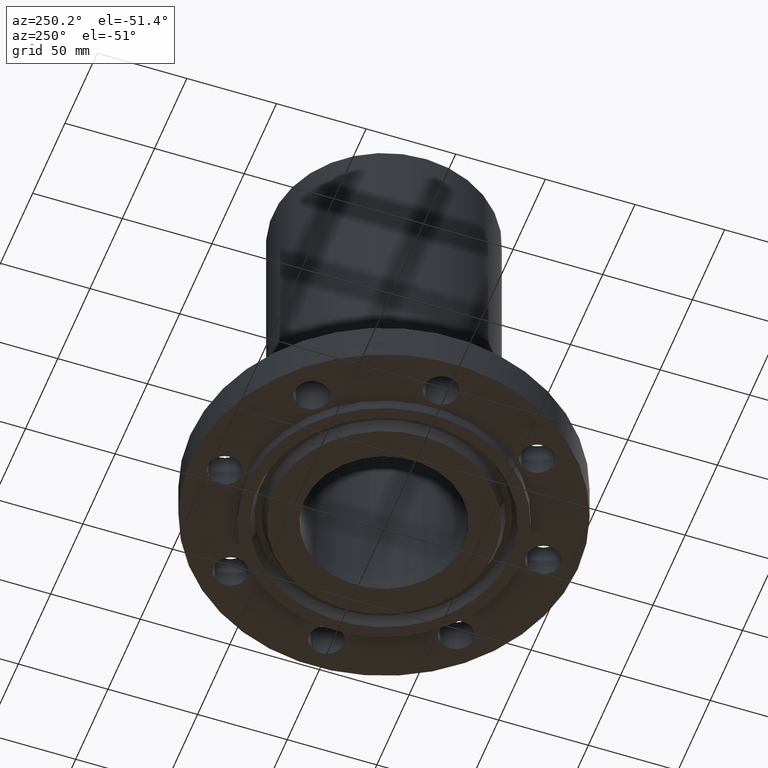
[diagram: clean part render]
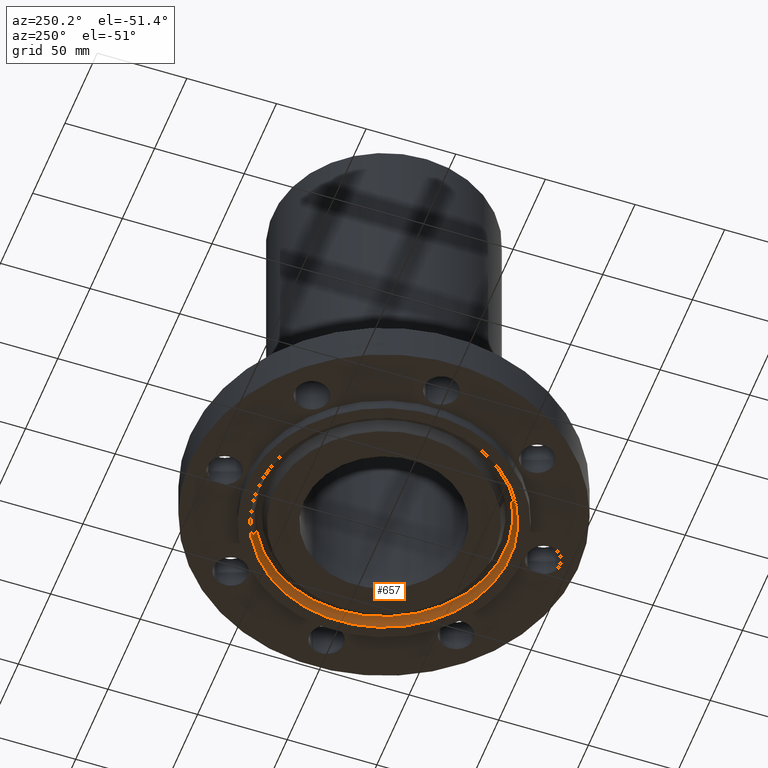
[diagram: same view with one face highlighted and labeled with its STEP entity id]
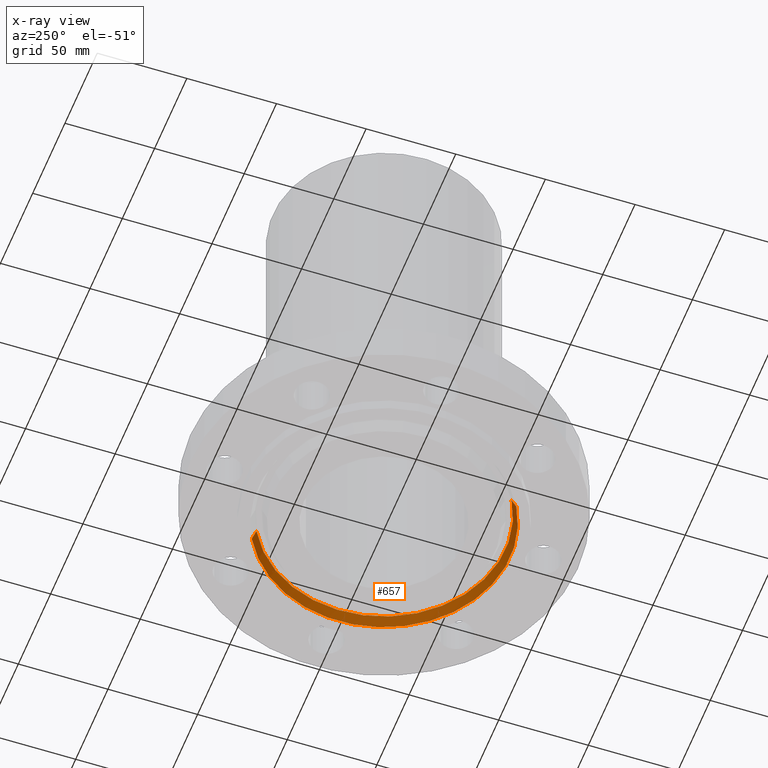
[diagram: x-ray of the same camera — body ghosted, the highlighted face saturated]
A machine part, auxiliary view. The second image highlights one B-rep face of the part: STEP entity #657.
The next image is the same camera in x-ray: the body ghosted, the highlighted face saturated — about 0% of this face is hidden behind the body in this view.
In plain terms, the highlighted conical surface has half-angle 23 deg.
Its self-contained STEP definition (entity closure, byte-faithful):
#605=AXIS2_PLACEMENT_3D('Circle Axis2P3D',#603,#604,$) ;
#618=AXIS2_PLACEMENT_3D('Cone Axis2P3D',#615,#616,#617) ;
#648=AXIS2_PLACEMENT_3D('Circle Axis2P3D',#646,#647,$) ;
#581=CARTESIAN_POINT('Vertex',(-1.27905867244,-2.34130119524,-0.0188873350169)) ;
#588=CARTESIAN_POINT('Vertex',(1.27905867244,2.34130119524,-0.0188873350169)) ;
#603=CARTESIAN_POINT('Axis2P3D Location',(0.,0.,-0.0188873350169)) ;
#615=CARTESIAN_POINT('Axis2P3D Location',(0.,0.,-0.0188873350169)) ;
#620=CARTESIAN_POINT('Line Origine',(-1.30257485611,-2.38434728072,-0.134443667509)) ;
#624=CARTESIAN_POINT('Vertex',(-1.32609103978,-2.4273933662,-0.250000000001)) ;
#631=CARTESIAN_POINT('Vertex',(1.32609103978,2.4273933662,-0.250000000001)) ;
#634=CARTESIAN_POINT('Line Origine',(1.30257485611,2.38434728072,-0.134443667509)) ;
#646=CARTESIAN_POINT('Axis2P3D Location',(0.,0.,-0.250000000001)) ;
#604=DIRECTION('Axis2P3D Direction',(0.,0.,-0.0393700787402)) ;
#616=DIRECTION('Axis2P3D Direction',(0.,0.,-0.0393700787402)) ;
#617=DIRECTION('Axis2P3D XDirection',(0.0188750212049,0.0345504945626,0.)) ;
#621=DIRECTION('Vector Direction',(-0.00737505833565,-0.0134999537303,-0.0362403485611)) ;
#635=DIRECTION('Vector Direction',(0.00737505833565,0.0134999537303,-0.0362403485611)) ;
#647=DIRECTION('Axis2P3D Direction',(0.,0.,-0.0393700787402)) ;
#622=VECTOR('Line Direction',#621,0.0393700787402) ;
#636=VECTOR('Line Direction',#635,0.0393700787402) ;
#652=ORIENTED_EDGE('',*,*,#607,.F.) ;
#653=ORIENTED_EDGE('',*,*,#638,.T.) ;
#654=ORIENTED_EDGE('',*,*,#650,.T.) ;
#655=ORIENTED_EDGE('',*,*,#626,.F.) ;
#657=ADVANCED_FACE('PartBody',(#656),#619,.F.) ;
#606=CIRCLE('generated circle',#605,2.66789849402) ;
#649=CIRCLE('generated circle',#648,2.76600000001) ;
#619=CONICAL_SURFACE('Cone',#618,2.66789849402,0.401425727959) ;
#607=EDGE_CURVE('',#589,#582,#606,.T.) ;
#626=EDGE_CURVE('',#582,#625,#623,.T.) ;
#638=EDGE_CURVE('',#589,#632,#637,.T.) ;
#650=EDGE_CURVE('',#632,#625,#649,.T.) ;
#651=EDGE_LOOP('',(#652,#653,#654,#655)) ;
#656=FACE_OUTER_BOUND('',#651,.T.) ;
#623=LINE('Line',#620,#622) ;
#637=LINE('Line',#634,#636) ;
#582=VERTEX_POINT('',#581) ;
#589=VERTEX_POINT('',#588) ;
#625=VERTEX_POINT('',#624) ;
#632=VERTEX_POINT('',#631) ;